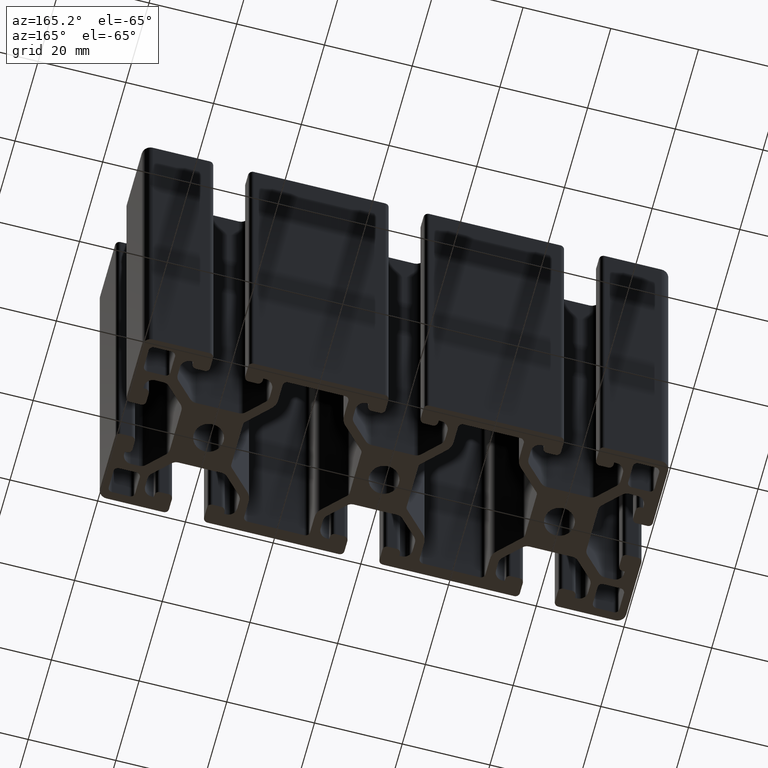
[diagram: clean part render]
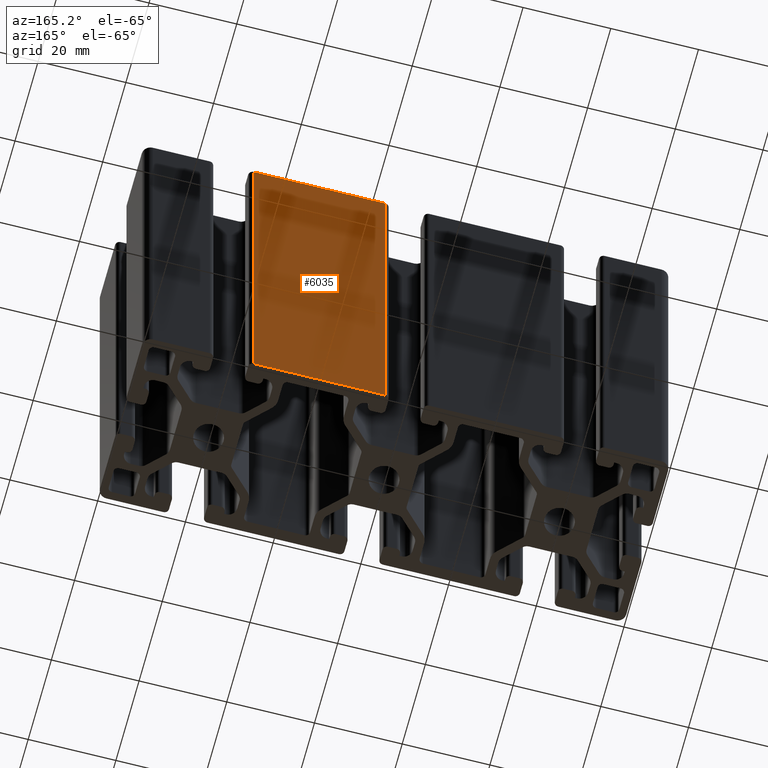
[diagram: same view with one face highlighted and labeled with its STEP entity id]
A machine part, auxiliary view. The second image highlights one B-rep face of the part: STEP entity #6035.
In plain terms, the highlighted planar face has unit normal (0, 1, 0).
Its self-contained STEP definition (entity closure, byte-faithful):
#190=PLANE('',#6616);
#487=FACE_OUTER_BOUND('',#791,.T.);
#791=EDGE_LOOP('',(#4977,#4978,#4979,#4980));
#1048=LINE('',#9116,#1656);
#1204=LINE('',#9574,#1812);
#1420=LINE('',#10188,#2028);
#1421=LINE('',#10189,#2029);
#1656=VECTOR('',#7329,100.);
#1812=VECTOR('',#7777,100.);
#2028=VECTOR('',#8381,30.0000039918976);
#2029=VECTOR('',#8382,30.0000039918976);
#2553=VERTEX_POINT('',#9112);
#2554=VERTEX_POINT('',#9114);
#2709=VERTEX_POINT('',#9571);
#2710=VERTEX_POINT('',#9573);
#3264=EDGE_CURVE('',#2553,#2554,#1048,.T.);
#3491=EDGE_CURVE('',#2709,#2710,#1204,.T.);
#3798=EDGE_CURVE('',#2710,#2554,#1420,.T.);
#3799=EDGE_CURVE('',#2709,#2553,#1421,.T.);
#4977=ORIENTED_EDGE('',*,*,#3264,.T.);
#4978=ORIENTED_EDGE('',*,*,#3798,.F.);
#4979=ORIENTED_EDGE('',*,*,#3491,.F.);
#4980=ORIENTED_EDGE('',*,*,#3799,.T.);
#6035=ADVANCED_FACE('',(#487),#190,.T.);
#6616=AXIS2_PLACEMENT_3D('',#10187,#8379,#8380);
#7329=DIRECTION('',(0.,0.,-1.));
#7777=DIRECTION('',(0.,0.,-1.));
#8379=DIRECTION('center_axis',(0.,1.,0.));
#8380=DIRECTION('ref_axis',(-1.,0.,0.));
#8381=DIRECTION('',(1.,0.,0.));
#8382=DIRECTION('',(1.,0.,0.));
#9112=CARTESIAN_POINT('',(35.0000019959488,20.,100.));
#9114=CARTESIAN_POINT('',(35.0000019959488,20.,0.));
#9116=CARTESIAN_POINT('',(35.0000019959489,20.,0.));
#9571=CARTESIAN_POINT('',(4.99999800405121,20.,100.));
#9573=CARTESIAN_POINT('',(4.99999800405121,20.,0.));
#9574=CARTESIAN_POINT('',(4.99999800405118,20.,0.));
#10187=CARTESIAN_POINT('Origin',(58.,20.,0.));
#10188=CARTESIAN_POINT('',(29.,20.,0.));
#10189=CARTESIAN_POINT('',(29.,20.,100.));